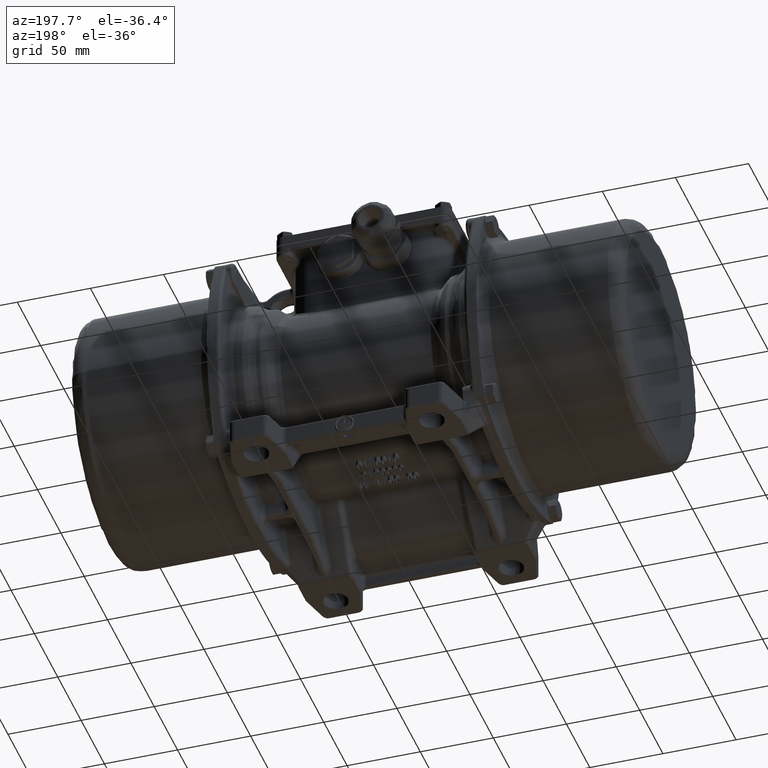
[diagram: clean part render]
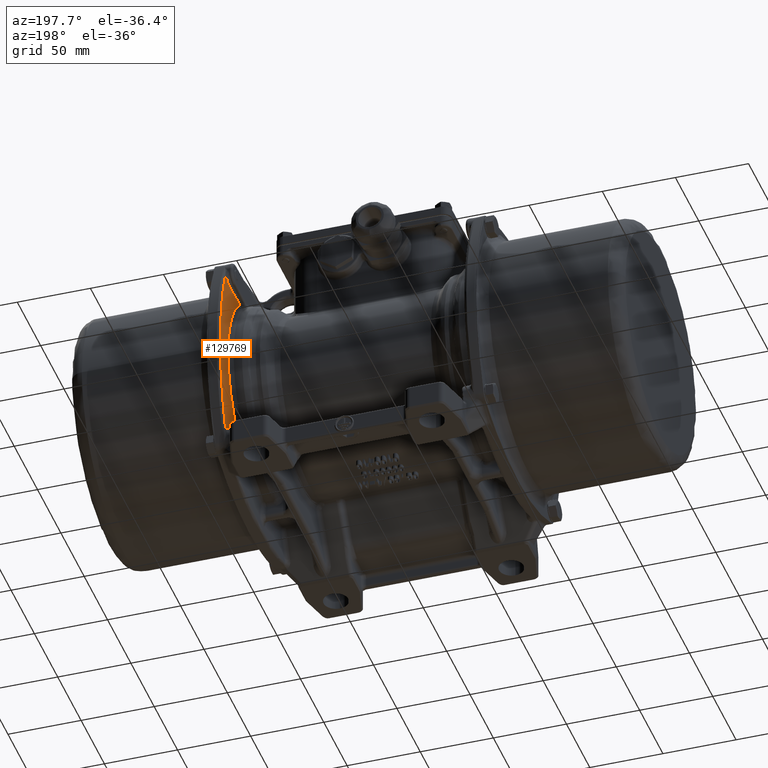
[diagram: same view with one face highlighted and labeled with its STEP entity id]
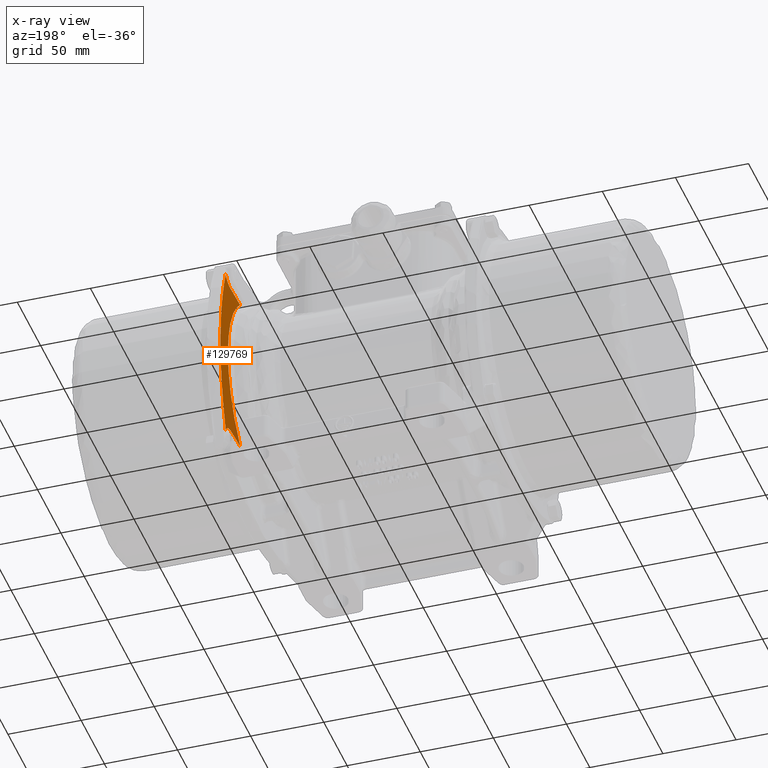
[diagram: x-ray of the same camera — body ghosted, the highlighted face saturated]
A machine part, auxiliary view. The second image highlights one B-rep face of the part: STEP entity #129769.
The next image is the same camera in x-ray: the body ghosted, the highlighted face saturated — about 4% of this face is hidden behind the body in this view.
In plain terms, the highlighted face is a freeform B-spline surface patch.
Its self-contained STEP definition (entity closure, byte-faithful):
#16361 = ORIENTED_EDGE ( 'NONE', *, *, #240972, .F. ) ;
#16363 = ORIENTED_EDGE ( 'NONE', *, *, #241526, .T. ) ;
#16365 = ORIENTED_EDGE ( 'NONE', *, *, #73669, .T. ) ;
#16367 = ORIENTED_EDGE ( 'NONE', *, *, #73712, .T. ) ;
#16368 = ORIENTED_EDGE ( 'NONE', *, *, #73715, .T. ) ;
#16370 = ORIENTED_EDGE ( 'NONE', *, *, #73714, .T. ) ;
#16372 = ORIENTED_EDGE ( 'NONE', *, *, #73706, .T. ) ;
#16374 = ORIENTED_EDGE ( 'NONE', *, *, #73703, .T. ) ;
#47100 = CARTESIAN_POINT ( 'NONE',  ( 77.64896919734020700, 50.08975631382580200, -125.2812807373208100 ) ) ;
#47102 = CARTESIAN_POINT ( 'NONE',  ( 77.67260203115539200, 49.44928697924579800, -126.4411929536780100 ) ) ;
#47330 = CARTESIAN_POINT ( 'NONE',  ( 77.64897120466351100, 49.47206620596320200, -12.17499383990424100 ) ) ;
#47418 = CARTESIAN_POINT ( 'NONE',  ( 77.99725307436790400, 58.79806743680060100, -11.86049119462446000 ) ) ;
#50047 = CARTESIAN_POINT ( 'NONE',  ( 78.34347758386579100, 67.44085035482990500, -126.4526491776356100 ) ) ;
#50059 = CARTESIAN_POINT ( 'NONE',  ( 78.35762194281089400, 67.78967644062530000, -11.54105657704473800 ) ) ;
#50061 = CARTESIAN_POINT ( 'NONE',  ( 78.88253423649871400, 76.32675637043421100, -6.130943427496709400 ) ) ;
#50063 = CARTESIAN_POINT ( 'NONE',  ( 78.88252044457209400, 76.32672146668940600, -131.8690815988946100 ) ) ;
#69480 = FACE_OUTER_BOUND ( 'NONE', #122027, .T. ) ;
#73669 = EDGE_CURVE ( 'NONE', #136820, #136877, #77900, .T. ) ;
#73703 = EDGE_CURVE ( 'NONE', #158802, #136697, #77972, .T. ) ;
#73706 = EDGE_CURVE ( 'NONE', #158816, #158802, #77978, .T. ) ;
#73712 = EDGE_CURVE ( 'NONE', #136877, #158812, #77992, .T. ) ;
#73714 = EDGE_CURVE ( 'NONE', #158814, #158816, #77996, .T. ) ;
#73715 = EDGE_CURVE ( 'NONE', #158812, #158814, #77998, .T. ) ;
#77900 = B_SPLINE_CURVE_WITH_KNOTS ( 'NONE', 3,
 ( #82049, #82075, #82077, #82079 ),
 .UNSPECIFIED., .F., .F.,
 ( 4, 4 ),
 ( 0.0000000000000000000, 1.000000000000000000 ),
 .UNSPECIFIED. ) ;
#77972 = B_SPLINE_CURVE_WITH_KNOTS ( 'NONE', 3,
 ( #82682, #82726, #82729, #82731 ),
 .UNSPECIFIED., .F., .F.,
 ( 4, 4 ),
 ( 0.0000000000000000000, 1.000000000000000000 ),
 .UNSPECIFIED. ) ;
#77978 = B_SPLINE_CURVE_WITH_KNOTS ( 'NONE', 3,
 ( #82734, #82827, #82830, #82833, #82836, #82839, #82842, #82845, #82848, #82850, #82853, #82856, #82858, #82859, #82862, #82865, #82868, #82871, #82874, #82877, #82880, #82883, #82886, #82888, #82891, #82894, #82897, #82900, #82903 ),
 .UNSPECIFIED., .F., .F.,
 ( 4, 2, 1, 1, 2, 2, 2, 1, 1, 2, 2, 2, 2, 1, 2, 2, 4 ),
 ( 0.0000000000000000000, 0.1249999999999825100, 0.1874999999999769900, 0.2187499999999772700, 0.2343749999999804300, 0.2499999999999835700, 0.3750000000000062700, 0.4375000000000161000, 0.4687500000000209800, 0.4843750000000234800, 0.5000000000000259800, 0.6250000000000330800, 0.6875000000000367500, 0.7187500000000384100, 0.7343750000000399700, 0.7500000000000414100, 1.000000000000000000 ),
 .UNSPECIFIED. ) ;
#77992 = B_SPLINE_CURVE_WITH_KNOTS ( 'NONE', 3,
 ( #83036, #83053, #83056, #83059 ),
 .UNSPECIFIED., .F., .F.,
 ( 4, 4 ),
 ( 0.0000000000000000000, 1.000000000000000000 ),
 .UNSPECIFIED. ) ;
#77996 = B_SPLINE_CURVE_WITH_KNOTS ( 'NONE', 3,
 ( #83064, #83088, #83091, #83093, #83095, #83098, #83101, #83104, #83107, #83110, #83112, #83115, #83118, #83120, #83121, #83124, #83127, #83130, #83133, #83136, #83139, #83141, #83144, #83147, #83150, #83153, #83156, #83159, #83162, #83164, #83167, #83170, #83172, #83175, #83178, #83181, #83184, #83187, #83190, #83193, #83196, #83198, #83201, #83204, #83206, #83209, #83212, #83214, #83215, #83218, #83221, #83223, #83225, #83228, #83231, #83234, #83237, #83240, #83243 ),
 .UNSPECIFIED., .F., .F.,
 ( 4, 2, 2, 2, 1, 1, 1, 1, 2, 2, 2, 2, 2, 1, 2, 2, 2, 2, 2, 2, 1, 1, 1, 2, 2, 2, 2, 2, 1, 1, 1, 2, 2, 2, 4 ),
 ( 0.0000000000000000000, 0.1249999999999849800, 0.1874999999999774300, 0.2187499999999736300, 0.2343749999999718000, 0.2421874999999708300, 0.2460937499999703600, 0.2480468749999701100, 0.2490234374999700800, 0.2499999999999700200, 0.3124999999999669700, 0.3437499999999654200, 0.3593749999999646400, 0.3671874999999642000, 0.3710937499999639700, 0.3749999999999637000, 0.4374999999999586400, 0.4999999999999533700, 0.5624999999999480400, 0.5937499999999453800, 0.6093749999999441600, 0.6171874999999434900, 0.6210937499999433800, 0.6230468749999434900, 0.6249999999999436000, 0.6874999999999538100, 0.7187499999999587000, 0.7343749999999611400, 0.7421874999999622500, 0.7460937499999628100, 0.7480468749999629200, 0.7490234374999630300, 0.7499999999999630300, 0.8749999999999814600, 1.000000000000000000 ),
 .UNSPECIFIED. ) ;
#77998 = B_SPLINE_CURVE_WITH_KNOTS ( 'NONE', 3,
 ( #83084, #83250, #83253, #83255, #83258, #83261, #83264, #83267, #83270, #83273, #83275, #83277, #83280, #83283, #83286, #83289, #83292, #83295, #83298, #83301, #83304, #83307, #83309, #83311, #83314, #83317, #83320, #83323 ),
 .UNSPECIFIED., .F., .F.,
 ( 4, 2, 1, 1, 2, 2, 2, 1, 1, 2, 2, 2, 1, 1, 2, 2, 4 ),
 ( 0.0000000000000000000, 0.1249999999999930100, 0.1874999999999894300, 0.2187499999999874800, 0.2343749999999864800, 0.2499999999999854600, 0.3749999999999855700, 0.4374999999999837400, 0.4687499999999847300, 0.4843749999999852900, 0.4999999999999857900, 0.6249999999999919000, 0.6874999999999950000, 0.7187499999999967800, 0.7343749999999977800, 0.7499999999999987800, 1.000000000000000000 ),
 .UNSPECIFIED. ) ;
#82049 = CARTESIAN_POINT ( 'NONE',  ( 77.64897120466351100, 49.47206620596320200, -12.17499383990424100 ) ) ;
#82075 = CARTESIAN_POINT ( 'NONE',  ( 77.75631244097375800, 52.48065783978788100, -12.07857542812512200 ) ) ;
#82077 = CARTESIAN_POINT ( 'NONE',  ( 77.87240756760337500, 55.58716084958674500, -11.97465524315088600 ) ) ;
#82079 = CARTESIAN_POINT ( 'NONE',  ( 77.99725307436790400, 58.79806743680060100, -11.86049119462446000 ) ) ;
#82682 = CARTESIAN_POINT ( 'NONE',  ( 78.34347758386579100, 67.44085035482990500, -126.4526491776356100 ) ) ;
#82726 = CARTESIAN_POINT ( 'NONE',  ( 78.08894719210006500, 61.06388716462139900, -126.4489398995539200 ) ) ;
#82729 = CARTESIAN_POINT ( 'NONE',  ( 77.86532245874215600, 55.08124637605433800, -126.4450522849549300 ) ) ;
#82731 = CARTESIAN_POINT ( 'NONE',  ( 77.67260203115539200, 49.44928697924579800, -126.4411929536780100 ) ) ;
#82734 = CARTESIAN_POINT ( 'NONE',  ( 78.88252044457209400, 76.32672146668940600, -131.8690815988946100 ) ) ;
#82827 = CARTESIAN_POINT ( 'NONE',  ( 78.86038865467014600, 76.11356308369809700, -131.4562862267536600 ) ) ;
#82830 = CARTESIAN_POINT ( 'NONE',  ( 78.83772649298548200, 75.87547131318446200, -131.0644249783991300 ) ) ;
#82833 = CARTESIAN_POINT ( 'NONE',  ( 78.80330748432179200, 75.48249310449134000, -130.5072004221603900 ) ) ;
#82836 = CARTESIAN_POINT ( 'NONE',  ( 78.78599153845578900, 75.27704151108356700, -130.2362261591208000 ) ) ;
#82839 = CARTESIAN_POINT ( 'NONE',  ( 78.76560332892731300, 75.02197389813436200, -129.9332287138121600 ) ) ;
#82842 = CARTESIAN_POINT ( 'NONE',  ( 78.75682560926836100, 74.90939650170804500, -129.8061614085160300 ) ) ;
#82845 = CARTESIAN_POINT ( 'NONE',  ( 78.75096492603449900, 74.83362334713784500, -129.7220665515021900 ) ) ;
#82848 = CARTESIAN_POINT ( 'NONE',  ( 78.74811163618548400, 74.79644632078637300, -129.6814761397922100 ) ) ;
#82850 = CARTESIAN_POINT ( 'NONE',  ( 78.72092534899644500, 74.43935574717697500, -129.2982474630680100 ) ) ;
#82853 = CARTESIAN_POINT ( 'NONE',  ( 78.69693146778868700, 74.10390034652577600, -128.9849649333575900 ) ) ;
#82856 = CARTESIAN_POINT ( 'NONE',  ( 78.66119820708424000, 73.57505927753592800, -128.5545881310562800 ) ) ;
#82858 = CARTESIAN_POINT ( 'NONE',  ( 78.64339596700875700, 73.30422015730073300, -128.3492843312571400 ) ) ;
#82859 = CARTESIAN_POINT ( 'NONE',  ( 78.62273936990506200, 72.97727376719461700, -128.1267112849275000 ) ) ;
#82862 = CARTESIAN_POINT ( 'NONE',  ( 78.61391068892874000, 72.83482952942409800, -128.0349157468622800 ) ) ;
#82865 = CARTESIAN_POINT ( 'NONE',  ( 78.60803026746755500, 72.73935298141628900, -127.9745128004230100 ) ) ;
#82868 = CARTESIAN_POINT ( 'NONE',  ( 78.60517907091706000, 72.69277719049856000, -127.9455734807318500 ) ) ;
#82871 = CARTESIAN_POINT ( 'NONE',  ( 78.57798848578279700, 72.24574754905307800, -127.6731012636540500 ) ) ;
#82874 = CARTESIAN_POINT ( 'NONE',  ( 78.55443891151139700, 71.83832869142368300, -127.4620075149985600 ) ) ;
#82877 = CARTESIAN_POINT ( 'NONE',  ( 78.52004430220944200, 71.21297732883070400, -127.1903049392660000 ) ) ;
#82880 = CARTESIAN_POINT ( 'NONE',  ( 78.50873439112632500, 71.00215285341749900, -127.1072270939410100 ) ) ;
#82883 = CARTESIAN_POINT ( 'NONE',  ( 78.49200196252792200, 70.68243239986446700, -126.9936304725109400 ) ) ;
#82886 = CARTESIAN_POINT ( 'NONE',  ( 78.48369385773527500, 70.52170092120947200, -126.9395872040814600 ) ) ;
#82888 = CARTESIAN_POINT ( 'NONE',  ( 78.47547291720252400, 70.35967422255643600, -126.8896363639792900 ) ) ;
#82891 = CARTESIAN_POINT ( 'NONE',  ( 78.47001166001622600, 70.25136969857185000, -126.8572407777602000 ) ) ;
#82894 = CARTESIAN_POINT ( 'NONE',  ( 78.46735902583662900, 70.19844564607380700, -126.8418808262823300 ) ) ;
#82897 = CARTESIAN_POINT ( 'NONE',  ( 78.42010636552750200, 69.24967542366708500, -126.5753140087012000 ) ) ;
#82900 = CARTESIAN_POINT ( 'NONE',  ( 78.37973903732132900, 68.34933263521094200, -126.4531887486428000 ) ) ;
#82903 = CARTESIAN_POINT ( 'NONE',  ( 78.34347758386579100, 67.44085035482990500, -126.4526491776356100 ) ) ;
#83036 = CARTESIAN_POINT ( 'NONE',  ( 77.99725307436790400, 58.79806743680060100, -11.86049119462446000 ) ) ;
#83053 = CARTESIAN_POINT ( 'NONE',  ( 78.10994189137993300, 61.69624734482250300, -11.75743877652704600 ) ) ;
#83056 = CARTESIAN_POINT ( 'NONE',  ( 78.23006438641719700, 64.69223462995532300, -11.65099335618628400 ) ) ;
#83059 = CARTESIAN_POINT ( 'NONE',  ( 78.35762194281089400, 67.78967644062530000, -11.54105657704473800 ) ) ;
#83064 = CARTESIAN_POINT ( 'NONE',  ( 78.88253423649871400, 76.32675637043421100, -6.130943427496709400 ) ) ;
#83084 = CARTESIAN_POINT ( 'NONE',  ( 78.35762194281089400, 67.78967644062530000, -11.54105657704473800 ) ) ;
#83088 = CARTESIAN_POINT ( 'NONE',  ( 78.79963039500722700, 78.50678332203556000, -11.27272643661515500 ) ) ;
#83091 = CARTESIAN_POINT ( 'NONE',  ( 78.72656596773688900, 80.37080445248156500, -16.41067857498653400 ) ) ;
#83093 = CARTESIAN_POINT ( 'NONE',  ( 78.63207663413169300, 82.74386490320644300, -24.10625237399631300 ) ) ;
#83095 = CARTESIAN_POINT ( 'NONE',  ( 78.60309807414672900, 83.46424822217503000, -26.66975354428035800 ) ) ;
#83098 = CARTESIAN_POINT ( 'NONE',  ( 78.56340706099418000, 84.44389427086629500, -30.51390016065404300 ) ) ;
#83101 = CARTESIAN_POINT ( 'NONE',  ( 78.55080619441417900, 84.75358356747537400, -31.79513381617697100 ) ) ;
#83104 = CARTESIAN_POINT ( 'NONE',  ( 78.53284910125044900, 85.19335435246817700, -33.71696892681929800 ) ) ;
#83107 = CARTESIAN_POINT ( 'NONE',  ( 78.52410660634518500, 85.40705019704714100, -34.67788015256815000 ) ) ;
#83110 = CARTESIAN_POINT ( 'NONE',  ( 78.51432011938963700, 85.64563144471756600, -35.79898003234865200 ) ) ;
#83112 = CARTESIAN_POINT ( 'NONE',  ( 78.50953014852041200, 85.76225013624761600, -36.35954620419638400 ) ) ;
#83115 = CARTESIAN_POINT ( 'NONE',  ( 78.50716098123784500, 85.81989278129226800, -36.63983425363917200 ) ) ;
#83118 = CARTESIAN_POINT ( 'NONE',  ( 78.50615115629224800, 85.84445403928079100, -36.75995886697760500 ) ) ;
#83120 = CARTESIAN_POINT ( 'NONE',  ( 78.50547916909769700, 85.86079650718303900, -36.84004221238481600 ) ) ;
#83121 = CARTESIAN_POINT ( 'NONE',  ( 78.50515714306844500, 85.86862722467148500, -36.87848685341092600 ) ) ;
#83124 = CARTESIAN_POINT ( 'NONE',  ( 78.48252953731075400, 86.41880031417542800, -39.58502931646515300 ) ) ;
#83127 = CARTESIAN_POINT ( 'NONE',  ( 78.46301463077429600, 86.88926689694407900, -42.24500126181900600 ) ) ;
#83130 = CARTESIAN_POINT ( 'NONE',  ( 78.43788914428394300, 87.49271996748142000, -46.23245997616322700 ) ) ;
#83133 = CARTESIAN_POINT ( 'NONE',  ( 78.43020512767293400, 87.67682527870715600, -47.56126442340352900 ) ) ;
#83136 = CARTESIAN_POINT ( 'NONE',  ( 78.41971582108494900, 87.92776140896677400, -49.55483521585392700 ) ) ;
#83139 = CARTESIAN_POINT ( 'NONE',  ( 78.41639217194371300, 88.00719911435443500, -50.21942440170902000 ) ) ;
#83141 = CARTESIAN_POINT ( 'NONE',  ( 78.41166587781401600, 88.12007697594893300, -51.21650150606534900 ) ) ;
#83144 = CARTESIAN_POINT ( 'NONE',  ( 78.40936752564474000, 88.17494706914608600, -51.71508605552523400 ) ) ;
#83147 = CARTESIAN_POINT ( 'NONE',  ( 78.40716636581875300, 88.22747169529255000, -52.21374975307640700 ) ) ;
#83150 = CARTESIAN_POINT ( 'NONE',  ( 78.40572052423323200, 88.26196762724860900, -52.54621096929474800 ) ) ;
#83153 = CARTESIAN_POINT ( 'NONE',  ( 78.40501777897208100, 88.27873171251938800, -52.71022826068777100 ) ) ;
#83156 = CARTESIAN_POINT ( 'NONE',  ( 78.39293589807103000, 88.56690685417756000, -55.57426302701774300 ) ) ;
#83159 = CARTESIAN_POINT ( 'NONE',  ( 78.38440705593771400, 88.76849888572402800, -58.26368939065999100 ) ) ;
#83162 = CARTESIAN_POINT ( 'NONE',  ( 78.37303405145334500, 89.03737616874737200, -63.63553394510476800 ) ) ;
#83164 = CARTESIAN_POINT ( 'NONE',  ( 78.37018988836821600, 89.10466498310746900, -66.31906086479533300 ) ) ;
#83167 = CARTESIAN_POINT ( 'NONE',  ( 78.37018624491712200, 89.10467671744990500, -71.68097478195792900 ) ) ;
#83170 = CARTESIAN_POINT ( 'NONE',  ( 78.37302893258755900, 89.03744647148754200, -74.36286781634386500 ) ) ;
#83172 = CARTESIAN_POINT ( 'NONE',  ( 78.38155972818729800, 88.83582557317684800, -78.39174376856759400 ) ) ;
#83175 = CARTESIAN_POINT ( 'NONE',  ( 78.38511445406950900, 88.75178212689860400, -79.73570543858133400 ) ) ;
#83178 = CARTESIAN_POINT ( 'NONE',  ( 78.39151323391637000, 88.60010530852316900, -81.75367725390412900 ) ) ;
#83181 = CARTESIAN_POINT ( 'NONE',  ( 78.39497929659566500, 88.51786017536058200, -82.76316970665054400 ) ) ;
#83184 = CARTESIAN_POINT ( 'NONE',  ( 78.39948971371094900, 88.41057759222061900, -83.94190239918644600 ) ) ;
#83187 = CARTESIAN_POINT ( 'NONE',  ( 78.40186159159934200, 88.35408607506228400, -84.53152889109188100 ) ) ;
#83190 = CARTESIAN_POINT ( 'NONE',  ( 78.40290311126516100, 88.32926269111790400, -84.78428299350277100 ) ) ;
#83193 = CARTESIAN_POINT ( 'NONE',  ( 78.40360301339153200, 88.31257737840363100, -84.95279854345568500 ) ) ;
#83196 = CARTESIAN_POINT ( 'NONE',  ( 78.40396050669041000, 88.30405289223787700, -85.03819209611786800 ) ) ;
#83198 = CARTESIAN_POINT ( 'NONE',  ( 78.41553500427524200, 88.02799052120002400, -87.78185465798532100 ) ) ;
#83201 = CARTESIAN_POINT ( 'NONE',  ( 78.42952171460864000, 87.69378549446871300, -90.43932260346912200 ) ) ;
#83204 = CARTESIAN_POINT ( 'NONE',  ( 78.45464621275812100, 87.09029466286320100, -94.42677904287057800 ) ) ;
#83206 = CARTESIAN_POINT ( 'NONE',  ( 78.46371178424949700, 86.87209417476704200, -95.75619965114540800 ) ) ;
#83209 = CARTESIAN_POINT ( 'NONE',  ( 78.47834624964893600, 86.51870011769027300, -97.75154259198612300 ) ) ;
#83212 = CARTESIAN_POINT ( 'NONE',  ( 78.48339708947577300, 86.39654890245641600, -98.41686184160040800 ) ) ;
#83214 = CARTESIAN_POINT ( 'NONE',  ( 78.49123237625664700, 86.20671894205364100, -99.41521765001758100 ) ) ;
#83215 = CARTESIAN_POINT ( 'NONE',  ( 78.49521477640722400, 86.11015375065017000, -99.91448832711597600 ) ) ;
#83218 = CARTESIAN_POINT ( 'NONE',  ( 78.49997423424643700, 85.99459106542281000, -100.4971425872100900 ) ) ;
#83221 = CARTESIAN_POINT ( 'NONE',  ( 78.50238229424879000, 85.93608182039928100, -100.7885137697614400 ) ) ;
#83223 = CARTESIAN_POINT ( 'NONE',  ( 78.50342039091020800, 85.91085022438528500, -100.9133966895516200 ) ) ;
#83225 = CARTESIAN_POINT ( 'NONE',  ( 78.50411380445034100, 85.89399442255189900, -100.9966541056021500 ) ) ;
#83228 = CARTESIAN_POINT ( 'NONE',  ( 78.50447446596645300, 85.88522625723874200, -101.0398723217578500 ) ) ;
#83231 = CARTESIAN_POINT ( 'NONE',  ( 78.54766052775744400, 84.83519772221085000, -106.2053432739793000 ) ) ;
#83234 = CARTESIAN_POINT ( 'NONE',  ( 78.60058262716788100, 83.53480214205731600, -111.3287902347735200 ) ) ;
#83237 = CARTESIAN_POINT ( 'NONE',  ( 78.72656845257323300, 80.37071360141298700, -121.5895675362987900 ) ) ;
#83240 = CARTESIAN_POINT ( 'NONE',  ( 78.79963217856824500, 78.50664408400246000, -126.7275117980645400 ) ) ;
#83243 = CARTESIAN_POINT ( 'NONE',  ( 78.88252044457209400, 76.32672146668940600, -131.8690815988946100 ) ) ;
#83250 = CARTESIAN_POINT ( 'NONE',  ( 78.37572748934677200, 68.22932727626759700, -11.52544679083716300 ) ) ;
#83253 = CARTESIAN_POINT ( 'NONE',  ( 78.39474506722393700, 68.66607727581956100, -11.48142489491368100 ) ) ;
#83255 = CARTESIAN_POINT ( 'NONE',  ( 78.42463928135779800, 69.31703912482004200, -11.37152473531581600 ) ) ;
#83258 = CARTESIAN_POINT ( 'NONE',  ( 78.43992835025426300, 69.64147442139409300, -11.30560644284624600 ) ) ;
#83261 = CARTESIAN_POINT ( 'NONE',  ( 78.45836403050181200, 70.01814193000454600, -11.20921924600470600 ) ) ;
#83264 = CARTESIAN_POINT ( 'NONE',  ( 78.46639327200823300, 70.17917204214084800, -11.16370377970199500 ) ) ;
#83267 = CARTESIAN_POINT ( 'NONE',  ( 78.47177459649830700, 70.28643623553162500, -11.13242175600900200 ) ) ;
#83270 = CARTESIAN_POINT ( 'NONE',  ( 78.47453918338087000, 70.34119880919064400, -11.11594765673490100 ) ) ;
#83273 = CARTESIAN_POINT ( 'NONE',  ( 78.49847452890655600, 70.81250611138712300, -10.96999210749155500 ) ) ;
#83275 = CARTESIAN_POINT ( 'NONE',  ( 78.52028158784376900, 71.22204201003661700, -10.81355926491526100 ) ) ;
#83277 = CARTESIAN_POINT ( 'NONE',  ( 78.55378897062112700, 71.82168550723997700, -10.53729108158906800 ) ) ;
#83280 = CARTESIAN_POINT ( 'NONE',  ( 78.57074186060263800, 72.11783789474986900, -10.38875236683096000 ) ) ;
#83283 = CARTESIAN_POINT ( 'NONE',  ( 78.59086882978535000, 72.45676020410481000, -10.19690565399143800 ) ) ;
#83286 = CARTESIAN_POINT ( 'NONE',  ( 78.59956937319307700, 72.60057977291575100, -10.11067363581844200 ) ) ;
#83289 = CARTESIAN_POINT ( 'NONE',  ( 78.60538633534770300, 72.69613866027302200, -10.05228999973314100 ) ) ;
#83292 = CARTESIAN_POINT ( 'NONE',  ( 78.60837504624483100, 72.74492471089735100, -10.02191044714138200 ) ) ;
#83295 = CARTESIAN_POINT ( 'NONE',  ( 78.63405340597921600, 73.16153802676335300, -9.757764474096539700 ) ) ;
#83298 = CARTESIAN_POINT ( 'NONE',  ( 78.65699821847036300, 73.51591235909363300, -9.499714819097693700 ) ) ;
#83301 = CARTESIAN_POINT ( 'NONE',  ( 78.69159484296456200, 74.02248243674030400, -9.076296194330149400 ) ) ;
#83304 = CARTESIAN_POINT ( 'NONE',  ( 78.70893800665109600, 74.26951640363144200, -8.855502686909867200 ) ) ;
#83307 = CARTESIAN_POINT ( 'NONE',  ( 78.72925018763750400, 74.54651463187795500, -8.581712830023304800 ) ) ;
#83309 = CARTESIAN_POINT ( 'NONE',  ( 78.73797222735004200, 74.66279533617958500, -8.460872642591388300 ) ) ;
#83311 = CARTESIAN_POINT ( 'NONE',  ( 78.74379065811167800, 74.73977165837395400, -8.379530984465029400 ) ) ;
#83314 = CARTESIAN_POINT ( 'NONE',  ( 78.74677020979521600, 74.77887956481663400, -8.337495028939857300 ) ) ;
#83317 = CARTESIAN_POINT ( 'NONE',  ( 78.79512646343248200, 75.40873664905635100, -7.649340418108256000 ) ) ;
#83320 = CARTESIAN_POINT ( 'NONE',  ( 78.83951133659988400, 75.91468608168912600, -6.928837363202646300 ) ) ;
#83323 = CARTESIAN_POINT ( 'NONE',  ( 78.88253423649871400, 76.32675637043421100, -6.130943427496709400 ) ) ;
#96799 = CARTESIAN_POINT ( 'NONE',  ( 77.64901416000630300, 49.75437461550525600, -125.5807528723515400 ) ) ;
#96801 = CARTESIAN_POINT ( 'NONE',  ( 77.64896919734020700, 50.08975631382580200, -125.2812807373208100 ) ) ;
#96836 = CARTESIAN_POINT ( 'NONE',  ( 77.65750628529973200, 49.52317206575288100, -125.9976154635548900 ) ) ;
#96839 = CARTESIAN_POINT ( 'NONE',  ( 77.67260203115539200, 49.44928697924579800, -126.4411929536780100 ) ) ;
#97560 = B_SPLINE_SURFACE_WITH_KNOTS ( 'NONE', 3, 3, ( 
 ( #175980, #175953, #175963, #175985 ),
 ( #175987, #175990, #175993, #175995 ),
 ( #175997, #176000, #176003, #176006 ),
 ( #176009, #176012, #176014, #176017 ),
 ( #176020, #176023, #176026, #176029 ),
 ( #176032, #176035, #176038, #176041 ),
 ( #176044, #176047, #176050, #176053 ),
 ( #176056, #176059, #176062, #176065 ),
 ( #176068, #176071, #176074, #176077 ),
 ( #176080, #176083, #176086, #176089 ),
 ( #176092, #176095, #176098, #176100 ),
 ( #176103, #176106, #176109, #176111 ),
 ( #176114, #176117, #176120, #176123 ),
 ( #176126, #176128, #176131, #176134 ),
 ( #176137, #176140, #176143, #176146 ),
 ( #176148, #176150, #176153, #176156 ),
 ( #176159, #176162, #176165, #176168 ) ),
 .UNSPECIFIED., .F., .F., .F.,
 ( 4, 1, 1, 1, 1, 1, 1, 1, 1, 1, 1, 1, 1, 1, 4 ),
 ( 4, 4 ),
 ( 0.0000000000000000000, 9.330660949700579500, 18.66132189940120200, 27.99198284910169900, 37.32264379880230400, 46.65330474850279800, 55.98396569820329900, 74.61850753528860000, 93.25304937237379500, 102.5837103220740100, 111.9143712717750100, 121.2450322214750000, 130.5756931711760000, 139.9063541208769800, 149.2370150705770000 ),
 ( 0.0000000000000000000, 23.57468618764880100 ),
 .UNSPECIFIED. ) ;
#100660 = B_SPLINE_CURVE_WITH_KNOTS ( 'NONE', 3,
 ( #96801, #96799, #96836, #96839 ),
 .UNSPECIFIED., .F., .F.,
 ( 4, 4 ),
 ( 0.0000000000000000000, 1.000000000000000000 ),
 .UNSPECIFIED. ) ;
#101142 = B_SPLINE_CURVE_WITH_KNOTS ( 'NONE', 3,
 ( #128765, #128729, #128834, #128838, #128840, #128844, #128846, #128850, #128853, #128856, #128859, #128863, #128865, #128869, #128871, #128875, #128878, #128881 ),
 .UNSPECIFIED., .F., .F.,
 ( 4, 2, 2, 2, 2, 2, 2, 2, 4 ),
 ( 0.0000000000000000000, 0.1250000000000001700, 0.2500000000000003300, 0.3750000000000005000, 0.5000000000000006700, 0.6250000000000004400, 0.7500000000000003300, 0.8750000000000001100, 1.000000000000000000 ),
 .UNSPECIFIED. ) ;
#122027 = EDGE_LOOP ( 'NONE', ( #16361, #16363, #16365, #16367, #16368, #16370, #16372, #16374 ) ) ;
#128729 = CARTESIAN_POINT ( 'NONE',  ( 77.64896967108467200, 54.06914863411378700, -121.7395238312937500 ) ) ;
#128765 = CARTESIAN_POINT ( 'NONE',  ( 77.64896919734020700, 50.08975631382580200, -125.2812807373208100 ) ) ;
#128834 = CARTESIAN_POINT ( 'NONE',  ( 77.64896963950191400, 57.67368700317812400, -117.7720925365095300 ) ) ;
#128838 = CARTESIAN_POINT ( 'NONE',  ( 77.64896957633637000, 63.96376247260042200, -109.1694349523004300 ) ) ;
#128840 = CARTESIAN_POINT ( 'NONE',  ( 77.64896954475365500, 66.65097977851820600, -104.5334754685632000 ) ) ;
#128844 = CARTESIAN_POINT ( 'NONE',  ( 77.64896948158808200, 70.98855068822167900, -94.79857311238673400 ) ) ;
#128846 = CARTESIAN_POINT ( 'NONE',  ( 77.64896945000526800, 72.63910581064821800, -89.70359167161677800 ) ) ;
#128850 = CARTESIAN_POINT ( 'NONE',  ( 77.64896938683968100, 74.82953713881021000, -79.26769734871837200 ) ) ;
#128853 = CARTESIAN_POINT ( 'NONE',  ( 77.64896935525690900, 75.37133587548474600, -73.92573872572596400 ) ) ;
#128856 = CARTESIAN_POINT ( 'NONE',  ( 77.64896929209138000, 75.31237310145748200, -63.24854780691219200 ) ) ;
#128859 = CARTESIAN_POINT ( 'NONE',  ( 77.64896926050853700, 74.71286757197118800, -57.91334754917790000 ) ) ;
#128863 = CARTESIAN_POINT ( 'NONE',  ( 77.64896919734305000, 72.40850426869919000, -47.50450957473819400 ) ) ;
#128865 = CARTESIAN_POINT ( 'NONE',  ( 77.64896916576023500, 70.70243522020175000, -42.42706469693841600 ) ) ;
#128869 = CARTESIAN_POINT ( 'NONE',  ( 77.64896910259464800, 66.25864439584938700, -32.74035262182098900 ) ) ;
#128871 = CARTESIAN_POINT ( 'NONE',  ( 77.64896907101196200, 63.52097725547120900, -28.13389317136378100 ) ) ;
#128875 = CARTESIAN_POINT ( 'NONE',  ( 77.64896900784641800, 57.13731160732073300, -19.60068873834494200 ) ) ;
#128878 = CARTESIAN_POINT ( 'NONE',  ( 77.64896897626360300, 53.48904698075772800, -15.67219217627890900 ) ) ;
#128881 = CARTESIAN_POINT ( 'NONE',  ( 77.64897120466351100, 49.47206620596320200, -12.17499383990424100 ) ) ;
#129769 = ADVANCED_FACE ( 'NONE', ( #69480 ), #97560, .T. ) ;
#136696 = VERTEX_POINT ( 'NONE', #47100 ) ;
#136697 = VERTEX_POINT ( 'NONE', #47102 ) ;
#136820 = VERTEX_POINT ( 'NONE', #47330 ) ;
#136877 = VERTEX_POINT ( 'NONE', #47418 ) ;
#158802 = VERTEX_POINT ( 'NONE', #50047 ) ;
#158812 = VERTEX_POINT ( 'NONE', #50059 ) ;
#158814 = VERTEX_POINT ( 'NONE', #50061 ) ;
#158816 = VERTEX_POINT ( 'NONE', #50063 ) ;
#175953 = CARTESIAN_POINT ( 'NONE',  ( 78.47150301456680700, 59.77540895677350400, -0.3356291890073179700 ) ) ;
#175963 = CARTESIAN_POINT ( 'NONE',  ( 78.06023509964759900, 54.62277245414789900, -6.254493483333459600 ) ) ;
#175980 = CARTESIAN_POINT ( 'NONE',  ( 78.88277092948608500, 64.92804545939900200, 5.583235105318820500 ) ) ;
#175985 = CARTESIAN_POINT ( 'NONE',  ( 77.64896718472819300, 49.47013595152239400, -12.17335777765960000 ) ) ;
#175987 = CARTESIAN_POINT ( 'NONE',  ( 78.88277092948608500, 67.59087685812451700, 3.265121091695790200 ) ) ;
#175990 = CARTESIAN_POINT ( 'NONE',  ( 78.47150301456680700, 62.22692023692259500, -2.469779573364610000 ) ) ;
#175993 = CARTESIAN_POINT ( 'NONE',  ( 78.06023509964759900, 56.86296361572070200, -8.204680238425011000 ) ) ;
#175995 = CARTESIAN_POINT ( 'NONE',  ( 77.64896718472819300, 51.49900699451890100, -13.93958090348540000 ) ) ;
#175997 = CARTESIAN_POINT ( 'NONE',  ( 78.88277092948608500, 72.67218265201799500, -1.660706674026930100 ) ) ;
#176000 = CARTESIAN_POINT ( 'NONE',  ( 78.47150301456680700, 66.90497776530359900, -7.004697682532509800 ) ) ;
#176003 = CARTESIAN_POINT ( 'NONE',  ( 78.06023509964759900, 61.13777287858929600, -12.34868869103810100 ) ) ;
#176006 = CARTESIAN_POINT ( 'NONE',  ( 77.64896718472819300, 55.37056799187490000, -17.69267969954369900 ) ) ;
#176009 = CARTESIAN_POINT ( 'NONE',  ( 78.88277092948619900, 79.45689338915269700, -9.818876218572150100 ) ) ;
#176012 = CARTESIAN_POINT ( 'NONE',  ( 78.47150301456690600, 73.15125941595400100, -14.51544157468970100 ) ) ;
#176014 = CARTESIAN_POINT ( 'NONE',  ( 78.06023509964759900, 66.84562544275529200, -19.21200693080720300 ) ) ;
#176017 = CARTESIAN_POINT ( 'NONE',  ( 77.64896718472829200, 60.53999146955659700, -23.90857228692479800 ) ) ;
#176020 = CARTESIAN_POINT ( 'NONE',  ( 78.88277092948608500, 85.33100480160850100, -18.65689457978319900 ) ) ;
#176023 = CARTESIAN_POINT ( 'NONE',  ( 78.47150301456680700, 78.55920615842549600, -22.65208203831220100 ) ) ;
#176026 = CARTESIAN_POINT ( 'NONE',  ( 78.06023509964750000, 71.78740751524249200, -26.64726949684110100 ) ) ;
#176029 = CARTESIAN_POINT ( 'NONE',  ( 77.64896718472819300, 65.01560887205950200, -30.64245695537000100 ) ) ;
#176032 = CARTESIAN_POINT ( 'NONE',  ( 78.88277092948619900, 90.22592668777780000, -28.07192321083600100 ) ) ;
#176035 = CARTESIAN_POINT ( 'NONE',  ( 78.47150301456690600, 83.06567105332509000, -31.31994170941279500 ) ) ;
#176038 = CARTESIAN_POINT ( 'NONE',  ( 78.06023509964759900, 75.90541541887249400, -34.56796020798949300 ) ) ;
#176041 = CARTESIAN_POINT ( 'NONE',  ( 77.64896718472819300, 68.74515978441981200, -37.81597870656630500 ) ) ;
#176044 = CARTESIAN_POINT ( 'NONE',  ( 78.88277092948608500, 94.08582354553289000, -37.95772506259749700 ) ) ;
#176047 = CARTESIAN_POINT ( 'NONE',  ( 78.47150301456680700, 86.61924965823720900, -40.42121442405490200 ) ) ;
#176050 = CARTESIAN_POINT ( 'NONE',  ( 78.06023509964750000, 79.15267577094149900, -42.88470378551230100 ) ) ;
#176053 = CARTESIAN_POINT ( 'NONE',  ( 77.64896718472819300, 71.68610188364580400, -45.34819314696969900 ) ) ;
#176056 = CARTESIAN_POINT ( 'NONE',  ( 78.88277092948619900, 97.79051127941730200, -51.59794806393770000 ) ) ;
#176059 = CARTESIAN_POINT ( 'NONE',  ( 78.47150301456690600, 90.02993640821118500, -52.97896050123439700 ) ) ;
#176062 = CARTESIAN_POINT ( 'NONE',  ( 78.06023509964759900, 82.26936153700509600, -54.35997293853099400 ) ) ;
#176065 = CARTESIAN_POINT ( 'NONE',  ( 77.64896718472819300, 74.50878666579889400, -55.74098537582769800 ) ) ;
#176068 = CARTESIAN_POINT ( 'NONE',  ( 78.88277092948608500, 99.64700199201480800, -69.27726456728710500 ) ) ;
#176071 = CARTESIAN_POINT ( 'NONE',  ( 78.47150301456680700, 91.73909753857910200, -69.25526092867879400 ) ) ;
#176074 = CARTESIAN_POINT ( 'NONE',  ( 78.06023509964750000, 83.83119308514341100, -69.23325729007038400 ) ) ;
#176077 = CARTESIAN_POINT ( 'NONE',  ( 77.64896718472819300, 75.92328863170780600, -69.21125365146208700 ) ) ;
#176080 = CARTESIAN_POINT ( 'NONE',  ( 78.88277092948619900, 97.69215586320159200, -86.94597607673878800 ) ) ;
#176083 = CARTESIAN_POINT ( 'NONE',  ( 78.47150301456690600, 89.93938639725969600, -85.52179796585420500 ) ) ;
#176086 = CARTESIAN_POINT ( 'NONE',  ( 78.06023509964759900, 82.18661693131778600, -84.09761985496959400 ) ) ;
#176089 = CARTESIAN_POINT ( 'NONE',  ( 77.64896718472819300, 74.43384746537590500, -82.67344174408499700 ) ) ;
#176092 = CARTESIAN_POINT ( 'NONE',  ( 78.88277092948608500, 93.91161860472880100, -100.5653715394300000 ) ) ;
#176095 = CARTESIAN_POINT ( 'NONE',  ( 78.47150301456680700, 86.45886947883740000, -98.06036936079149800 ) ) ;
#176098 = CARTESIAN_POINT ( 'NONE',  ( 78.06023509964750000, 79.00612035294598500, -95.55536718215269300 ) ) ;
#176100 = CARTESIAN_POINT ( 'NONE',  ( 77.64896718472819300, 71.55337122705458300, -93.05036500351388900 ) ) ;
#176103 = CARTESIAN_POINT ( 'NONE',  ( 78.88277092948619900, 89.99676771742709000, -110.4295402593469900 ) ) ;
#176106 = CARTESIAN_POINT ( 'NONE',  ( 78.47150301456690600, 82.85469795114869400, -107.1417257312120100 ) ) ;
#176109 = CARTESIAN_POINT ( 'NONE',  ( 78.06023509964759900, 75.71262818487019800, -103.8539112030760000 ) ) ;
#176111 = CARTESIAN_POINT ( 'NONE',  ( 77.64896718472829200, 68.57055841859178700, -100.5660966749409900 ) ) ;
#176114 = CARTESIAN_POINT ( 'NONE',  ( 78.88277092948608500, 85.04952764851979900, -119.8171832061070000 ) ) ;
#176117 = CARTESIAN_POINT ( 'NONE',  ( 78.47150301456680700, 78.30006680163730000, -115.7843730234919900 ) ) ;
#176120 = CARTESIAN_POINT ( 'NONE',  ( 78.06023509964750000, 71.55060595475478600, -111.7515628408769900 ) ) ;
#176123 = CARTESIAN_POINT ( 'NONE',  ( 77.64896718472819300, 64.80114510787220200, -107.7187526582620100 ) ) ;
#176126 = CARTESIAN_POINT ( 'NONE',  ( 78.88277092948619900, 79.12632423732390000, -128.6223756962600100 ) ) ;
#176128 = CARTESIAN_POINT ( 'NONE',  ( 78.47150301456690600, 72.84692396123260500, -123.8907926502950000 ) ) ;
#176131 = CARTESIAN_POINT ( 'NONE',  ( 78.06023509964759900, 66.56752368514129600, -119.1592096043289900 ) ) ;
#176134 = CARTESIAN_POINT ( 'NONE',  ( 77.64896718472819300, 60.28812340904999400, -114.4276265583640000 ) ) ;
#176137 = CARTESIAN_POINT ( 'NONE',  ( 78.88277092948608500, 72.29631891271040400, -136.7426624750559900 ) ) ;
#176140 = CARTESIAN_POINT ( 'NONE',  ( 78.47150301456680700, 66.55894226446319800, -131.3666601219609900 ) ) ;
#176143 = CARTESIAN_POINT ( 'NONE',  ( 78.06023509964750000, 60.82156561621600600, -125.9906577688660000 ) ) ;
#176146 = CARTESIAN_POINT ( 'NONE',  ( 77.64896718472819300, 55.08418896796879200, -120.6146554157720100 ) ) ;
#176148 = CARTESIAN_POINT ( 'NONE',  ( 78.88277092948608500, 67.18767991169041000, -141.6401368553740100 ) ) ;
#176150 = CARTESIAN_POINT ( 'NONE',  ( 78.47150301456680700, 61.85572066988359600, -135.8754749471649700 ) ) ;
#176153 = CARTESIAN_POINT ( 'NONE',  ( 78.06023509964759900, 56.52376142807669600, -130.1108130389560000 ) ) ;
#176156 = CARTESIAN_POINT ( 'NONE',  ( 77.64896718472819300, 51.19180218626990400, -124.3461511307470000 ) ) ;
#176159 = CARTESIAN_POINT ( 'NONE',  ( 78.88277092948608500, 64.51198960242450700, -143.9433965035889900 ) ) ;
#176162 = CARTESIAN_POINT ( 'NONE',  ( 78.47150301456680700, 59.39237095180119800, -137.9959497963850200 ) ) ;
#176165 = CARTESIAN_POINT ( 'NONE',  ( 78.06023509964759900, 54.27275230117800200, -132.0485030891810000 ) ) ;
#176168 = CARTESIAN_POINT ( 'NONE',  ( 77.64896718472819300, 49.15313365055480700, -126.1010563819780000 ) ) ;
#240972 = EDGE_CURVE ( 'NONE', #136696, #136697, #100660, .T. ) ;
#241526 = EDGE_CURVE ( 'NONE', #136696, #136820, #101142, .T. ) ;